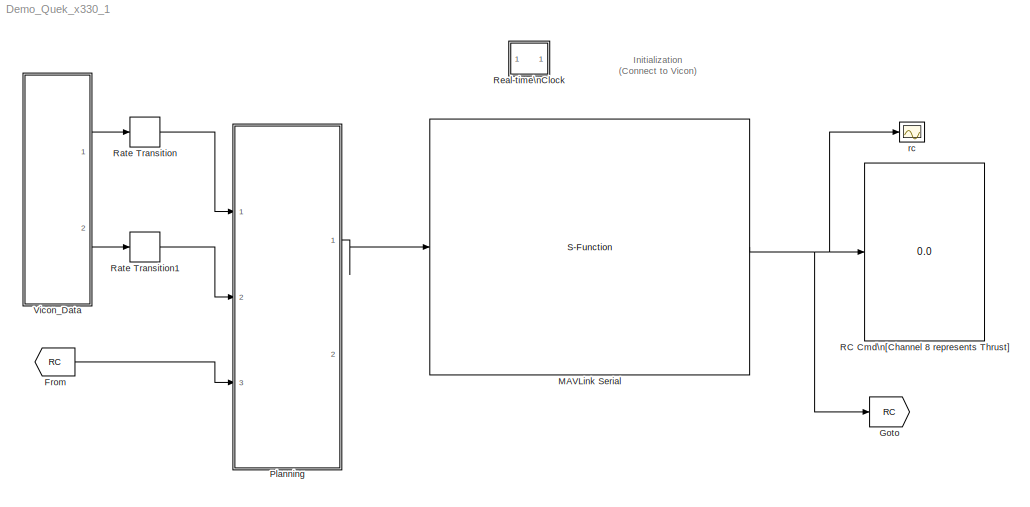
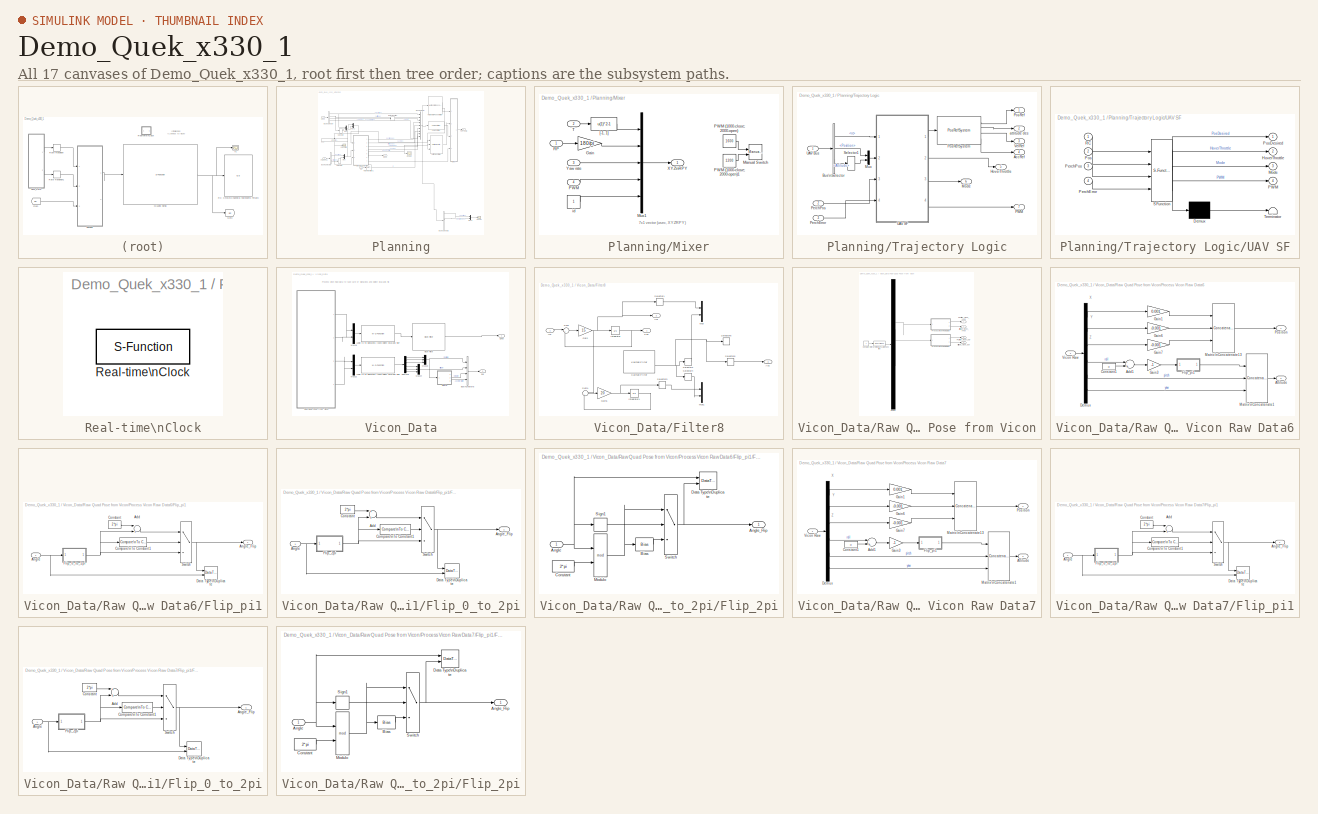
[diagram: thumbnail index - all 17 canvases of the model, root first then tree order]
MODEL Demo_Quek_x330_1
KIND model
CONFIG InitFcn = sample_time=0.005;%0.004;%0.0025;%0.02;\nsample_time_Vicon = 0.005;\nDeltaT = 0.02;\ng = 9.81;\nH0 = g%0.3165;\nKl = 1;\n\n\nomega_circle = 70*pi/180;\nomega_h = 0.1;%Ascending speed\nPI = pi;\nCircle_R = 2;\n\n\n
BLOCK [From] From
  GotoTag = RC
  SID = 4
  TagVisibility = global
BLOCK [Goto] Goto
  GotoTag = RC
  SID = 5
  TagVisibility = global
BLOCK [S-Function] MAVLink Serial
  EnableBusSupport = off
  FunctionName = MAVLink_Interface_MultUAV
  MaskCallbackString = |||||
  MaskDisplay = % Block image\nimage(imread('10-inch Quad Heat Map.png'));\n\n%Label block\nfprintf('MAVLink Serial\\n%s\\n%dbps', COM_Port,  Baud_Rate)\n\n\n%Label input ports\n\nin = 1;\nif (Quad_1 == 1)\n    port_label('input', in, 'Quad 1');\n    in = in + 1;\nend\nif (Quad_2 == 1)\n    port_label('input', in, 'Quad 2');\n    in = in + 1;\nend\n\nif (Quad_3 == 1)\n    port_label('input', in, 'Quad 3');\n    i...<+141ch>
  MaskEnableString = on,on,on,on,on,on
  MaskIconFrame = on
  MaskIconOpaque = off
  MaskIconRotate = none
  MaskIconUnits = autoscale
  MaskInitialization = MSG_ID_NUM_INPUT = [uint8(196) uint8(197) uint8(198)];\nMSG_ID_NAME_INPUT = [Quad_1 Quad_2 Quad_3];\n\nMSG_ID_NUM_OUTPUT = [uint8(34)];\nMSG_ID_NAME_OUTPUT = [RC_SCALED];\n\nidx_input = find(MSG_ID_NAME_INPUT);\nMSG_INPUT = MSG_ID_NUM_INPUT(idx_input);\n\nidx_output = find(MSG_ID_NAME_OUTPUT);\nMSG_OUTPUT = MSG_ID_NUM_OUTPUT(idx_output);
  MaskPortRotate = default
  MaskPromptString = COM Port|Baud Rate|RC CHANNELS SCALED|Quad No 1|Quad No 2|Quad No 3
  MaskStyleString = edit,edit,checkbox,checkbox,checkbox,checkbox
  MaskTabNameString = Setting,Setting,Output Message,Input Message,Input Message,Input Message
  MaskToolTipString = on,on,on,on,on,on
  MaskTunableValueString = on,on,on,on,on,on
  MaskValueString = 'COM7'|57600|on|on|off|off
  MaskVariables = COM_Port=@1;Baud_Rate=@2;RC_SCALED=@3;Quad_1=@4;Quad_2=@5;Quad_3=@6;
  MaskVisibilityString = on,on,on,on,on,on
  Parameters = COM_Port,Baud_Rate,MSG_INPUT,MSG_OUTPUT
  Ports = [1, 1]
  SID = 54
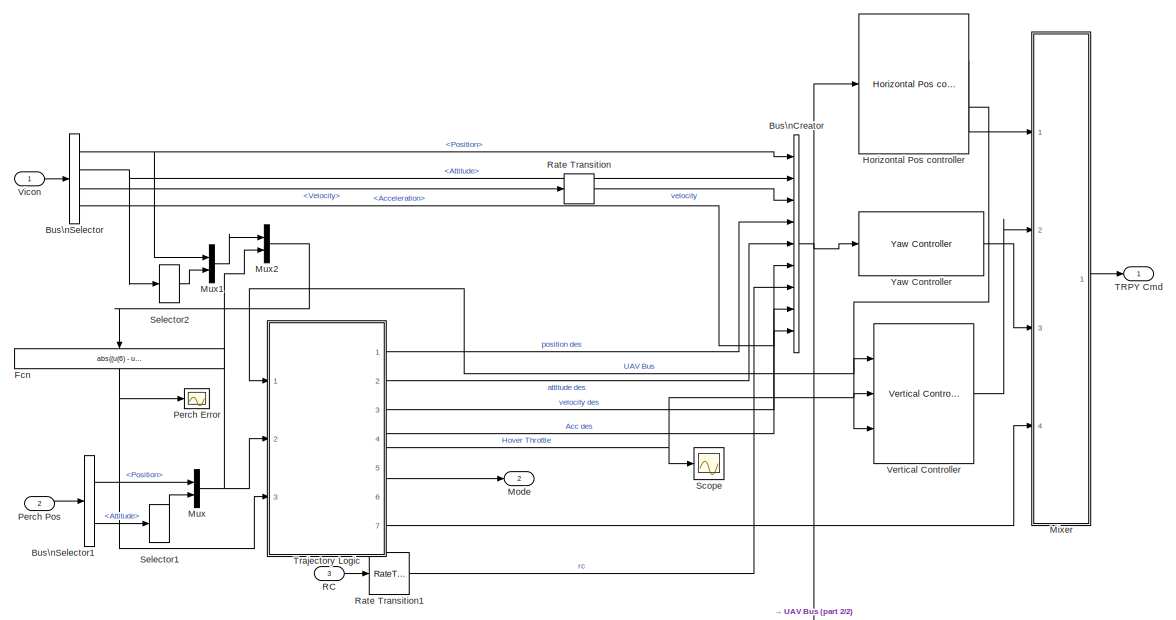
[diagram: Planning - part 1/2, full width, top band]
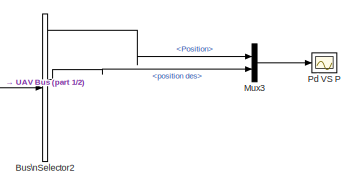
[diagram: Planning - part 2/2, bottom right region]
BLOCK [SubSystem] Planning
  FunctionWithSeparateData = off
  MaskHideContents = off
  MinAlgLoopOccurrences = off
  Opaque = off
  Ports = [3, 2]
  PropExecContextOutsideSubsystem = off
  RTWSystemCode = Auto
  RequestExecContextInheritance = off
  SID = 1084
BLOCK [BusCreator] Planning/Bus\nCreator
  DisplayOption = bar
  Inputs = 9
  Ports = [9, 1]
  SID = 2
BLOCK [BusSelector] Planning/Bus\nSelector
  OutputSignals = Position,Attitude,Velocity,Acceleration
  Ports = [1, 4]
  SID = 1083
BLOCK [BusSelector] Planning/Bus\nSelector1
  OutputSignals = Position,Attitude
  Ports = [1, 2]
  SID = 1508
BLOCK [BusSelector] Planning/Bus\nSelector2
  OutputSignals = Position,Attitude,velocity,position des,attitude des,velocity des,rc,Acc des
  Ports = [1, 8]
  SID = 1688
BLOCK [Fcn] Planning/Fcn
  Expr = abs((u(6) - u(2))*cos(u(8)) - (u(5) - u(1))*sin(u(8)))
  SID = 1515
BLOCK [Reference] Planning/Horizontal Pos controller  REF=X330_Control/Horizontal Pos controller
  FunctionWithSeparateData = off
  GeneratePreprocessorConditionals = off
  Max_RP = 60
  Omega = 2
  PID_i = 1
  Ports = [1, 2]
  RTWMemSecDataConstants = Inherit from model
  RTWMemSecDataInternal = Inherit from model
  RTWMemSecDataParameters = Inherit from model
  RTWMemSecFuncExecute = Inherit from model
  RTWMemSecFuncInitTerm = Inherit from model
  SID = 1684
  ShowPortLabels = FromPortIcon
  SourceBlock = X330_Control/Horizontal Pos controller
  SystemSampleTime = -1
  Zeta = 0.5
BLOCK [SubSystem] Planning/Mixer
  FunctionWithSeparateData = off
  MaskHideContents = off
  MinAlgLoopOccurrences = off
  Opaque = off
  Ports = [4, 1]
  PropExecContextOutsideSubsystem = off
  RTWSystemCode = Auto
  RequestExecContextInheritance = off
  SID = 60
BLOCK [Gain] Planning/Mixer/Gain
  Gain = 180/pi
  OutDataTypeStr = Inherit: Inherit via internal rule
  ParamDataTypeStr = Inherit: Inherit via internal rule
  SID = 1540
  SaturateOnIntegerOverflow = off
BLOCK [Reference] Planning/Mixer/Manual Switch  REF=simulink/Signal\nRouting/Manual Switch
  FunctionWithSeparateData = off
  GeneratePreprocessorConditionals = off
  Ports = [2, 1]
  RTWMemSecDataConstants = Inherit from model
  RTWMemSecDataInternal = Inherit from model
  RTWMemSecDataParameters = Inherit from model
  RTWMemSecFuncExecute = Inherit from model
  RTWMemSecFuncInitTerm = Inherit from model
  SID = 1434
  ShowPortLabels = FromPortIcon
  SourceBlock = simulink/Signal\nRouting/Manual Switch
  SourceType = Manual Switch
  SystemSampleTime = -1
  action = 0
  sw = 1
  varsize = off
BLOCK [Mux] Planning/Mixer/Mux1
  DisplayOption = bar
  Inputs = 5
  Ports = [5, 1]
  SID = 64
BLOCK [Inport] Planning/Mixer/PWM
  IconDisplay = Port number
  Port = 4
  SID = 1437
BLOCK [Constant] Planning/Mixer/PWM (1000-close; 2000-open)
  SID = 621
  SampleTime = 0.02
  Value = 1600
BLOCK [Constant] Planning/Mixer/PWM (1000-close; 2000-open)1
  SID = 1435
  SampleTime = 0.02
  Value = 1200
BLOCK [Inport] Planning/Mixer/RP
  IconDisplay = Port number
  SID = 61
BLOCK [Inport] Planning/Mixer/T
  IconDisplay = Port number
  Port = 2
  SID = 62
BLOCK [Outport] Planning/Mixer/XYZ\nRPY
  IconDisplay = Port number
  SID = 68
BLOCK [Inport] Planning/Mixer/Yaw rate
  IconDisplay = Port number
  Port = 3
  SID = 63
BLOCK [Fcn] Planning/Mixer/[-1, 1]
  Expr = u(1)*2-1
  SID = 1612
BLOCK [Constant] Planning/Mixer/id
  SID = 67
  SampleTime = 0.02
BLOCK [Outport] Planning/Mode
  IconDisplay = Port number
  Port = 2
  SID = 1089
BLOCK [Mux] Planning/Mux
  DisplayOption = bar
  Inputs = 2
  Ports = [2, 1]
  SID = 1509
BLOCK [Mux] Planning/Mux1
  DisplayOption = bar
  Inputs = 2
  Ports = [2, 1]
  SID = 1512
BLOCK [Mux] Planning/Mux2
  DisplayOption = bar
  Inputs = 2
  Ports = [2, 1]
  SID = 1514
BLOCK [Mux] Planning/Mux3
  DisplayOption = bar
  Inputs = 2
  Ports = [2, 1]
  SID = 1689
BLOCK [Scope] Planning/Pd VS P
  DataFormat = StructureWithTime
  Floating = off
  LimitDataPoints = off
  NumInputPorts = 1
  Ports = [1]
  SID = 1690
  SampleTime = 0
  TimeRange = 10
  YMax = 1.1
  YMin = -0.4
BLOCK [Scope] Planning/Perch Error
  DataFormat = StructureWithTime
  Floating = off
  LimitDataPoints = off
  NumInputPorts = 1
  Ports = [1]
  SID = 1516
  SampleTime = 0
  SaveName = ScopeData2
  TimeRange = 10
  YMax = 0.3
  YMin = 1.38778e-017
  ZoomMode = yonly
BLOCK [Inport] Planning/Perch Pos
  IconDisplay = Port number
  Port = 2
  SID = 1088
BLOCK [Inport] Planning/RC
  IconDisplay = Port number
  Port = 3
  SID = 1090
BLOCK [RateTransition] Planning/Rate Transition
  OutPortSampleTime = 0.02
  SID = 56
BLOCK [RateTransition] Planning/Rate Transition1
  OutPortSampleTime = 0.02
  SID = 57
BLOCK [Scope] Planning/Scope
  DataFormat = StructureWithTime
  Floating = off
  NumInputPorts = 1
  Ports = [1]
  SID = 1527
  SampleTime = 0
  SaveName = ScopeData4
BLOCK [Selector] Planning/Selector1
  IndexOptions = Index vector (dialog)
  Indices = [3]
  InputPortWidth = 3
  OutputSizes = 1
  Ports = [1, 1]
  SID = 1510
BLOCK [Selector] Planning/Selector2
  IndexOptions = Index vector (dialog)
  Indices = [3]
  InputPortWidth = 3
  OutputSizes = 1
  Ports = [1, 1]
  SID = 1513
BLOCK [Outport] Planning/TRPY Cmd
  IconDisplay = Port number
  SID = 1086
BLOCK [SubSystem] Planning/Trajectory Logic
  FunctionWithSeparateData = off
  MaskHideContents = off
  MinAlgLoopOccurrences = off
  Opaque = off
  Ports = [3, 7]
  PropExecContextOutsideSubsystem = off
  RTWSystemCode = Auto
  RequestExecContextInheritance = off
  SID = 573
BLOCK [Outport] Planning/Trajectory Logic/AccRef
  IconDisplay = Port number
  Port = 4
  SID = 577
BLOCK [BusSelector] Planning/Trajectory Logic/Bus\nSelector
  OutputSignals = rc,Position,Attitude
  Ports = [1, 3]
  SID = 583
BLOCK [Outport] Planning/Trajectory Logic/HoverThrottle
  IconDisplay = Port number
  Port = 5
  SID = 579
BLOCK [Outport] Planning/Trajectory Logic/Mode
  IconDisplay = Port number
  Port = 6
  SID = 581
BLOCK [Mux] Planning/Trajectory Logic/Mux
  DisplayOption = bar
  Inputs = 2
  Ports = [2, 1]
  SID = 593
BLOCK [Outport] Planning/Trajectory Logic/PWM
  IconDisplay = Port number
  Port = 7
  SID = 1436
BLOCK [Inport] Planning/Trajectory Logic/PerchError
  IconDisplay = Port number
  Port = 3
  SID = 1517
BLOCK [Inport] Planning/Trajectory Logic/PerchPos
  IconDisplay = Port number
  Port = 2
  SID = 580
BLOCK [Outport] Planning/Trajectory Logic/PosRef
  IconDisplay = Port number
  SID = 574
BLOCK [Reference] Planning/Trajectory Logic/PosRefSystem  REF=X330_Control/PosRefSystem
  Acc_Max = 5
  Acc_h_Max = 4
  FunctionWithSeparateData = off
  GeneratePreprocessorConditionals = off
  Omega_h_r = 2.8
  Omega_r = 1.8
  Ports = [1, 4]
  RTWMemSecDataConstants = Inherit from model
  RTWMemSecDataInternal = Inherit from model
  RTWMemSecDataParameters = Inherit from model
  RTWMemSecFuncExecute = Inherit from model
  RTWMemSecFuncInitTerm = Inherit from model
  SID = 1687
  ShowPortLabels = FromPortIcon
  SourceBlock = X330_Control/PosRefSystem
  SourceType = Unknown
  SystemSampleTime = -1
  Zeta_h_r = 1
  Zeta_r = 0.5
BLOCK [Selector] Planning/Trajectory Logic/Selector1
  IndexOptions = Index vector (dialog)
  Indices = [3]
  InputPortWidth = 3
  OutputSizes = 1
  Ports = [1, 1]
  SID = 592
BLOCK [Inport] Planning/Trajectory Logic/UAV Bus
  IconDisplay = Port number
  SID = 582
BLOCK [SubSystem] Planning/Trajectory Logic/UAV SF
  ErrorFcn = Stateflow.Translate.translate
  FunctionWithSeparateData = off
  MaskDescription = Stateflow diagram
  MaskDisplay = plot(sf('Private','sfblk','xIcon'),sf('Private','sfblk','yIcon'));text(0.5,0,sf('Private', 'sfblk', 'tIcon'),'HorizontalAl','Center','VerticalAl','Bottom');
  MaskHideContents = off
  MaskIconFrame = off
  MaskIconOpaque = off
  MaskIconRotate = none
  MaskIconUnits = autoscale
  MaskPortRotate = default
  MaskSelfModifiable = on
  MaskType = Stateflow
  MinAlgLoopOccurrences = off
  Opaque = off
  PermitHierarchicalResolution = ExplicitOnly
  Ports = [4, 4]
  PropExecContextOutsideSubsystem = off
  RTWSystemCode = Auto
  RequestExecContextInheritance = off
  SID = 572
  TreatAsAtomicUnit = on
BLOCK [Demux] Planning/Trajectory Logic/UAV SF/ Demux 
  Outputs = 1
  Ports = [1, 1]
  SID = 572::8
BLOCK [S-Function] Planning/Trajectory Logic/UAV SF/ SFunction 
  EnableBusSupport = on
  FunctionName = sf_sfun
  Parameters = Circle_R,DeltaT,H0,Kl,PI,omega_circle
  PortCounts = [4 5]
  Ports = [4, 5]
  SID = 572::7
  Tag = Stateflow S-Function Demo_Quek_x330_1 3
BLOCK [Terminator] Planning/Trajectory Logic/UAV SF/ Terminator 
  SID = 572::37
BLOCK [Outport] Planning/Trajectory Logic/UAV SF/HoverThrottle
  IconDisplay = Port number
  Port = 2
  SID = 572::17
BLOCK [Outport] Planning/Trajectory Logic/UAV SF/Mode
  IconDisplay = Port number
  Port = 3
  SID = 572::18
BLOCK [Outport] Planning/Trajectory Logic/UAV SF/PWM
  IconDisplay = Port number
  Port = 4
  SID = 572::35
BLOCK [Inport] Planning/Trajectory Logic/UAV SF/PerchError
  IconDisplay = Port number
  Port = 4
  SID = 572::36
BLOCK [Inport] Planning/Trajectory Logic/UAV SF/PerchPos
  IconDisplay = Port number
  Port = 3
  SID = 572::23
BLOCK [Inport] Planning/Trajectory Logic/UAV SF/Pos
  IconDisplay = Port number
  Port = 2
  SID = 572::20
BLOCK [Outport] Planning/Trajectory Logic/UAV SF/PosDesired
  IconDisplay = Port number
  SID = 572::16
BLOCK [Inport] Planning/Trajectory Logic/UAV SF/RC
  IconDisplay = Port number
  SID = 572::19
BLOCK [Outport] Planning/Trajectory Logic/VelRef
  IconDisplay = Port number
  Port = 3
  SID = 575
BLOCK [Outport] Planning/Trajectory Logic/attitude des
  IconDisplay = Port number
  Port = 2
  SID = 591
BLOCK [Reference] Planning/Vertical Controller  REF=X330_Control/Vertical Controller
  FunctionWithSeparateData = off
  GeneratePreprocessorConditionals = off
  Omega_h = 3
  PID_I_h = 1
  Ports = [3, 1]
  RTWMemSecDataConstants = Inherit from model
  RTWMemSecDataInternal = Inherit from model
  RTWMemSecDataParameters = Inherit from model
  RTWMemSecFuncExecute = Inherit from model
  RTWMemSecFuncInitTerm = Inherit from model
  SID = 1686
  ShowPortLabels = FromPortIcon
  SourceBlock = X330_Control/Vertical Controller
  SystemSampleTime = -1
  Zeta_h = 1
  mass = 0.72
BLOCK [Inport] Planning/Vicon
  IconDisplay = Port number
  SID = 1085
BLOCK [Reference] Planning/Yaw Controller  REF=X330_Control/Yaw Controller
  FunctionWithSeparateData = off
  GeneratePreprocessorConditionals = off
  Ports = [1, 1]
  RTWMemSecDataConstants = Inherit from model
  RTWMemSecDataInternal = Inherit from model
  RTWMemSecDataParameters = Inherit from model
  RTWMemSecFuncExecute = Inherit from model
  RTWMemSecFuncInitTerm = Inherit from model
  SID = 1685
  ShowPortLabels = FromPortIcon
  SourceBlock = X330_Control/Yaw Controller
  SourceType = SubSystem
  SystemSampleTime = -1
BLOCK [Display] RC Cmd\n[Channel 8 represents Thrust]
  Decimation = 1
  Lockdown = off
  Ports = [1]
  SID = 55
BLOCK [RateTransition] Rate Transition
  OutPortSampleTime = 0.02
  SID = 1518
BLOCK [RateTransition] Rate Transition1
  OutPortSampleTime = 0.02
  SID = 1519
BLOCK [SubSystem] Real-time\nClock
  FunctionWithSeparateData = off
  MaskCallbackString = |
  MaskDescription = Real-time Synchronization Block
  MaskDisplay = plot(0,0,100,100,[40,60,60,54,54,64,69,76,82,77,81,83,83,81,78,74,70,64,57,49,41,35,32,30,30,31,34,40,47,47,40,40],[90,90,85,85,80,79,76,87,80,70,64,57,49,41,33,28,24,22,21,23,25,31,37,46,56,65,73,78,80,85,85,90],[69,53,53],[64,50,73])
  MaskEnableString = on,on
  MaskHelp = This block synchronizes simulation time with the PC real-time clock or UNIX system clock. The first dialog entry is the period at which the clock is checked to insure real-time synchronization. The second dialog entry is the number of seconds that the simulation time must be within real-time before a warning is printed.
  MaskHideContents = off
  MaskIconFrame = on
  MaskIconOpaque = on
  MaskIconRotate = none
  MaskIconUnits = autoscale
  MaskPortRotate = default
  MaskPromptString = Synchronize with real-time every n seconds:|Real-time warning tolerance (seconds):
  MaskStyleString = edit,edit
  MaskToolTipString = on,on
  MaskTunableValueString = on,on
  MaskType = Real-time Clock
  MaskValueString = 0.02|1
  MaskVariables = sample_time=@1;tolerance=@2;
  MaskVisibilityString = on,on
  MinAlgLoopOccurrences = off
  Opaque = off
  Ports = []
  PropExecContextOutsideSubsystem = off
  RTWSystemCode = Auto
  RequestExecContextInheritance = off
  SID = 607
  ShowPortLabels = none
BLOCK [S-Function] Real-time\nClock/Real-time\nClock
  EnableBusSupport = off
  FunctionName = rtclock
  Parameters = sample_time, tolerance
  Ports = []
  SID = 608
BLOCK [SubSystem] Vicon_Data
  FunctionWithSeparateData = off
  MaskHideContents = off
  MinAlgLoopOccurrences = off
  Opaque = off
  Ports = [0, 2]
  PropExecContextOutsideSubsystem = off
  RTWSystemCode = Auto
  RequestExecContextInheritance = off
  SID = 622
BLOCK [BusCreator] Vicon_Data/Bus\nCreator8
  DisplayOption = bar
  Ports = [4, 1]
  SID = 1479
BLOCK [Demux] Vicon_Data/Demux8
  DisplayOption = bar
  Outputs = 6
  Ports = [1, 6]
  SID = 1480
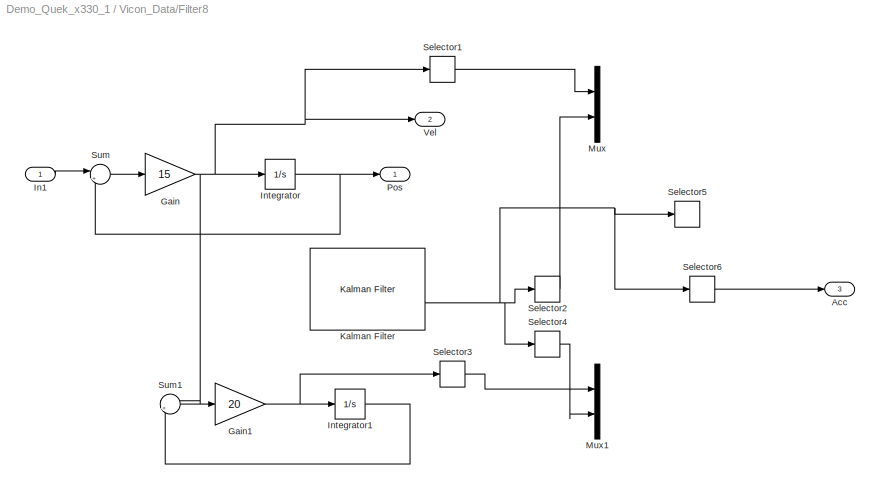
BLOCK [SubSystem] Vicon_Data/Filter8
  FunctionWithSeparateData = off
  MaskHideContents = off
  MinAlgLoopOccurrences = off
  Opaque = off
  Ports = [1, 3]
  PropExecContextOutsideSubsystem = off
  RTWSystemCode = Auto
  RequestExecContextInheritance = off
  SID = 1481
BLOCK [Outport] Vicon_Data/Filter8/Acc
  IconDisplay = Port number
  Port = 3
  SID = 1500
BLOCK [Gain] Vicon_Data/Filter8/Gain
  Gain = 15
  OutDataTypeStr = Inherit: Inherit via internal rule
  ParamDataTypeStr = Inherit: Inherit via internal rule
  SID = 1483
  SaturateOnIntegerOverflow = off
BLOCK [Gain] Vicon_Data/Filter8/Gain1
  Gain = 20
  OutDataTypeStr = Inherit: Inherit via internal rule
  ParamDataTypeStr = Inherit: Inherit via internal rule
  SID = 1484
  SaturateOnIntegerOverflow = off
BLOCK [Inport] Vicon_Data/Filter8/In1
  IconDisplay = Port number
  SID = 1482
BLOCK [Integrator] Vicon_Data/Filter8/Integrator
  Ports = [1, 1]
  SID = 1485
BLOCK [Integrator] Vicon_Data/Filter8/Integrator1
  Ports = [1, 1]
  SID = 1486
BLOCK [Reference] Vicon_Data/Filter8/Kalman Filter  REF=dspadpt3/Kalman Filter
  A = [1 sample_time sample_time*sample_time/2 zeros(1,6);0 1 sample_time zeros(1,6);0 0 1 zeros(1,6);0 0 0 1 sample_time sample_time*sample_time/2 0 0 0;zeros(1,4) 1 sample_time zeros(1,3);zeros(1,5) 1 zeros(1,3);zeros(1,6) 1 sample_time sample_time*sample_time/2;zeros(1,7) 1 sample_time;zeros(1,8) 1]
  FunctionWithSeparateData = off
  GeneratePreprocessorConditionals = off
  H = [1 zeros(1,8); zeros(1,3) 1 zeros(1,5);zeros(1,6) 1 0 0]
  P = zeros(9)
  Ports = [1, 2]
  Q = diag([0 0.001 0.001 0 0.001 0.001 0 0.001 0.001])
  R = 0.001*eye(3)
  RTWMemSecDataConstants = Inherit from model
  RTWMemSecDataInternal = Inherit from model
  RTWMemSecDataParameters = Inherit from model
  RTWMemSecFuncExecute = Inherit from model
  RTWMemSecFuncInitTerm = Inherit from model
  SID = 1487
  ShowPortLabels = FromPortIcon
  SourceBlock = dspadpt3/Kalman Filter
  SourceType = Kalman Filter
  SystemSampleTime = -1
  X = zeros([9, 1])
  isOutputEstError = off
  isOutputEstMeasure = on
  isOutputEstState = on
  isOutputPrdError = off
  isOutputPrdMeasure = off
  isOutputPrdState = off
  isReset = on
  num_targets = 1
  sourceEnable = Always
  sourceMeasure = Specify via Dialog
BLOCK [Mux] Vicon_Data/Filter8/Mux
  DisplayOption = bar
  Inputs = 2
  Ports = [2, 1]
  SID = 1488
BLOCK [Mux] Vicon_Data/Filter8/Mux1
  DisplayOption = bar
  Inputs = 2
  Ports = [2, 1]
  SID = 1489
BLOCK [Outport] Vicon_Data/Filter8/Pos
  IconDisplay = Port number
  SID = 1498
BLOCK [Selector] Vicon_Data/Filter8/Selector1
  IndexOptions = Index vector (dialog)
  Indices = [2]
  InputPortWidth = 3
  OutputSizes = 1
  Ports = [1, 1]
  SID = 1490
BLOCK [Selector] Vicon_Data/Filter8/Selector2
  IndexOptions = Index vector (dialog)
  Indices = [5]
  InputPortWidth = 9
  OutputSizes = 1
  Ports = [1, 1]
  SID = 1491
BLOCK [Selector] Vicon_Data/Filter8/Selector3
  IndexOptions = Index vector (dialog)
  Indices = [2]
  InputPortWidth = 3
  OutputSizes = 1
  Ports = [1, 1]
  SID = 1492
BLOCK [Selector] Vicon_Data/Filter8/Selector4
  IndexOptions = Index vector (dialog)
  Indices = [6]
  InputPortWidth = 9
  OutputSizes = 1
  Ports = [1, 1]
  SID = 1493
BLOCK [Selector] Vicon_Data/Filter8/Selector5
  IndexOptions = Index vector (dialog)
  Indices = [2 5 8]
  InputPortWidth = 9
  OutputSizes = 1
  Ports = [1, 1]
  SID = 1494
BLOCK [Selector] Vicon_Data/Filter8/Selector6
  IndexOptions = Index vector (dialog)
  Indices = [3 6 9]
  InputPortWidth = 9
  OutputSizes = 1
  Ports = [1, 1]
  SID = 1495
BLOCK [Sum] Vicon_Data/Filter8/Sum
  IconShape = round
  InputSameDT = off
  Inputs = |+-
  OutDataTypeStr = Inherit: Inherit via internal rule
  Ports = [2, 1]
  SID = 1496
  SaturateOnIntegerOverflow = off
BLOCK [Sum] Vicon_Data/Filter8/Sum1
  IconShape = round
  InputSameDT = off
  Inputs = |+-
  OutDataTypeStr = Inherit: Inherit via internal rule
  Ports = [2, 1]
  SID = 1497
  SaturateOnIntegerOverflow = off
BLOCK [Outport] Vicon_Data/Filter8/Vel
  IconDisplay = Port number
  Port = 2
  SID = 1499
BLOCK [M-S-Function] Vicon_Data/Logic to fix signal loss \nand object local axis flip7
  FunctionName = Vicon_Filter
  Ports = [1, 1]
  SID = 1426
BLOCK [M-S-Function] Vicon_Data/Logic to fix signal loss \nand object local axis flip8
  FunctionName = Vicon_Filter
  Ports = [1, 1]
  SID = 1501
BLOCK [Mux] Vicon_Data/Mux19
  DisplayOption = bar
  Inputs = 2
  Ports = [2, 1]
  SID = 1427
BLOCK [Mux] Vicon_Data/Mux22
  DisplayOption = bar
  Inputs = 2
  Ports = [2, 1]
  SID = 1502
BLOCK [Mux] Vicon_Data/Mux23
  DisplayOption = bar
  Inputs = 3
  Ports = [3, 1]
  SID = 1503
BLOCK [Mux] Vicon_Data/Mux24
  DisplayOption = bar
  Inputs = 3
  Ports = [3, 1]
  SID = 1504
BLOCK [Outport] Vicon_Data/Q400
  IconDisplay = Port number
  SID = 1430
BLOCK [SubSystem] Vicon_Data/Raw Quad Pose from Vicon
  FunctionWithSeparateData = off
  MaskHideContents = off
  MinAlgLoopOccurrences = off
  Opaque = off
  Ports = [0, 4]
  PropExecContextOutsideSubsystem = off
  RTWSystemCode = Auto
  RequestExecContextInheritance = off
  SID = 675
BLOCK [Outport] Vicon_Data/Raw Quad Pose from Vicon/Attitude_Vicon_bar
  IconDisplay = Port number
  Port = 4
  SID = 1478
BLOCK [Outport] Vicon_Data/Raw Quad Pose from Vicon/Attitude_Vicon_x400
  IconDisplay = Port number
  Port = 2
  SID = 1403
BLOCK [Constant] Vicon_Data/Raw Quad Pose from Vicon/Constant
  SID = 1431
BLOCK [Demux] Vicon_Data/Raw Quad Pose from Vicon/Demux
  DisplayOption = bar
  Outputs = 2
  Ports = [1, 2]
  SID = 677
BLOCK [MATLABFcn] Vicon_Data/Raw Quad Pose from Vicon/Interpreted MATLAB\nFunction
  MATLABFcn = GetViconPose_x330_1
  Ports = [1, 1]
  SID = 678
BLOCK [Outport] Vicon_Data/Raw Quad Pose from Vicon/Position_Vicon_bar
  IconDisplay = Port number
  Port = 3
  SID = 1477
BLOCK [Outport] Vicon_Data/Raw Quad Pose from Vicon/Position_Vicon_x400
  IconDisplay = Port number
  SID = 1402
BLOCK [SubSystem] Vicon_Data/Raw Quad Pose from Vicon/Process Vicon Raw Data6
  FunctionWithSeparateData = off
  MaskHideContents = off
  MinAlgLoopOccurrences = off
  Opaque = off
  Ports = [1, 2]
  PropExecContextOutsideSubsystem = off
  RTWSystemCode = Auto
  RequestExecContextInheritance = off
  SID = 1364
BLOCK [Sum] Vicon_Data/Raw Quad Pose from Vicon/Process Vicon Raw Data6/Add1
  InputSameDT = off
  Inputs = -+
  OutDataTypeStr = Inherit: Inherit via internal rule
  Ports = [2, 1]
  SID = 1366
  SaturateOnIntegerOverflow = off
BLOCK [Outport] Vicon_Data/Raw Quad Pose from Vicon/Process Vicon Raw Data6/Attitude
  IconDisplay = Port number
  Port = 2
  SID = 1401
BLOCK [Constant] Vicon_Data/Raw Quad Pose from Vicon/Process Vicon Raw Data6/Constant1
  OutDataTypeStr = double
  SID = 1367
  Value = pi
BLOCK [Demux] Vicon_Data/Raw Quad Pose from Vicon/Process Vicon Raw Data6/Demux
  DisplayOption = bar
  Outputs = 6
  Ports = [1, 6]
  SID = 1368
BLOCK [SubSystem] Vicon_Data/Raw Quad Pose from Vicon/Process Vicon Raw Data6/Flip_pi1
  FunctionWithSeparateData = off
  MaskDescription = Flips the inputs into the range -pi to pi
  MaskDisplay = disp('Flip_pi')
  MaskHelp = Flips the inputs into the range -pi to pi
  MaskHideContents = off
  MaskIconFrame = on
  MaskIconOpaque = on
  MaskIconRotate = none
  MaskIconUnits = autoscale
  MaskPortRotate = default
  MaskType = Flip -pi to pi
  MinAlgLoopOccurrences = off
  Opaque = off
  Ports = [1, 1]
  PropExecContextOutsideSubsystem = off
  RTWSystemCode = Auto
  RequestExecContextInheritance = off
  SID = 1369
BLOCK [Sum] Vicon_Data/Raw Quad Pose from Vicon/Process Vicon Raw Data6/Flip_pi1/Add
  InputSameDT = off
  Inputs = -+
  OutDataTypeStr = Inherit: Inherit via internal rule
  Ports = [2, 1]
  SID = 1371
  SaturateOnIntegerOverflow = off
BLOCK [Inport] Vicon_Data/Raw Quad Pose from Vicon/Process Vicon Raw Data6/Flip_pi1/Angle
  IconDisplay = Port number
  SID = 1370
BLOCK [Outport] Vicon_Data/Raw Quad Pose from Vicon/Process Vicon Raw Data6/Flip_pi1/Angle_Flip
  IconDisplay = Port number
  SID = 1393
BLOCK [Reference] Vicon_Data/Raw Quad Pose from Vicon/Process Vicon Raw Data6/Flip_pi1/Compare\nTo Constant1  REF=simulink/Logic and Bit\nOperations/Compare\nTo Constant
  FunctionWithSeparateData = off
  GeneratePreprocessorConditionals = off
  LogicOutDataTypeMode = uint8
  Ports = [1, 1]
  RTWMemSecDataConstants = Inherit from model
  RTWMemSecDataInternal = Inherit from model
  RTWMemSecDataParameters = Inherit from model
  RTWMemSecFuncExecute = Inherit from model
  RTWMemSecFuncInitTerm = Inherit from model
  SID = 1372
  ShowPortLabels = FromPortIcon
  SourceBlock = simulink/Logic and Bit\nOperations/Compare\nTo Constant
  SourceType = Compare To Constant
  SystemSampleTime = -1
  ZeroCross = off
  const = pi
  relop = >
BLOCK [Constant] Vicon_Data/Raw Quad Pose from Vicon/Process Vicon Raw Data6/Flip_pi1/Constant
  SID = 1373
  Value = 2*pi
BLOCK [DataTypeDuplicate] Vicon_Data/Raw Quad Pose from Vicon/Process Vicon Raw Data6/Flip_pi1/Data Type\nDuplicate
  Ports = [2]
  SID = 1374
BLOCK [SubSystem] Vicon_Data/Raw Quad Pose from Vicon/Process Vicon Raw Data6/Flip_pi1/Flip_0_to_2pi
  FunctionWithSeparateData = off
  MaskDescription = Flips the inputs into the range zero to +2pi
  MaskDisplay = disp('Flip_0_2pi')
  MaskHelp = Flips the inputs into the range zero to +2pi
  MaskHideContents = off
  MaskIconFrame = on
  MaskIconOpaque = on
  MaskIconRotate = none
  MaskIconUnits = autoscale
  MaskPortRotate = default
  MaskType = Flip zero to 2pi
  MinAlgLoopOccurrences = off
  Opaque = off
  Ports = [1, 1]
  PropExecContextOutsideSubsystem = off
  RTWSystemCode = Auto
  RequestExecContextInheritance = off
  SID = 1375
BLOCK [Sum] Vicon_Data/Raw Quad Pose from Vicon/Process Vicon Raw Data6/Flip_pi1/Flip_0_to_2pi/Add
  InputSameDT = off
  OutDataTypeStr = Inherit: Inherit via internal rule
  Ports = [2, 1]
  SID = 1377
  SaturateOnIntegerOverflow = off
BLOCK [Inport] Vicon_Data/Raw Quad Pose from Vicon/Process Vicon Raw Data6/Flip_pi1/Flip_0_to_2pi/Angle
  IconDisplay = Port number
  SID = 1376
BLOCK [Outport] Vicon_Data/Raw Quad Pose from Vicon/Process Vicon Raw Data6/Flip_pi1/Flip_0_to_2pi/Angle_Flip
  IconDisplay = Port number
  SID = 1391
BLOCK [Reference] Vicon_Data/Raw Quad Pose from Vicon/Process Vicon Raw Data6/Flip_pi1/Flip_0_to_2pi/Compare\nTo Constant1  REF=simulink/Logic and Bit\nOperations/Compare\nTo Constant
  FunctionWithSeparateData = off
  GeneratePreprocessorConditionals = off
  LogicOutDataTypeMode = uint8
  Ports = [1, 1]
  RTWMemSecDataConstants = Inherit from model
  RTWMemSecDataInternal = Inherit from model
  RTWMemSecDataParameters = Inherit from model
  RTWMemSecFuncExecute = Inherit from model
  RTWMemSecFuncInitTerm = Inherit from model
  SID = 1378
  ShowPortLabels = FromPortIcon
  SourceBlock = simulink/Logic and Bit\nOperations/Compare\nTo Constant
  SourceType = Compare To Constant
  SystemSampleTime = -1
  ZeroCross = off
  const = 0
  relop = <
BLOCK [Constant] Vicon_Data/Raw Quad Pose from Vicon/Process Vicon Raw Data6/Flip_pi1/Flip_0_to_2pi/Constant
  SID = 1379
  Value = 2*pi
BLOCK [DataTypeDuplicate] Vicon_Data/Raw Quad Pose from Vicon/Process Vicon Raw Data6/Flip_pi1/Flip_0_to_2pi/Data Type\nDuplicate
  Ports = [2]
  SID = 1380
BLOCK [SubSystem] Vicon_Data/Raw Quad Pose from Vicon/Process Vicon Raw Data6/Flip_pi1/Flip_0_to_2pi/Flip_2pi
  FunctionWithSeparateData = off
  MaskDescription = Flips the inputs into the range -2pi to +2pi
  MaskDisplay = disp('Flip_2pi')
  MaskHelp = Flips the inputs into the range -2pi to +2pi
  MaskHideContents = off
  MaskIconFrame = on
  MaskIconOpaque = on
  MaskIconRotate = none
  MaskIconUnits = autoscale
  MaskPortRotate = default
  MaskType = Flip -2pi to 2pi
  MinAlgLoopOccurrences = off
  Opaque = off
  Ports = [1, 1]
  PropExecContextOutsideSubsystem = off
  RTWSystemCode = Auto
  RequestExecContextInheritance = off
  SID = 1381
BLOCK [Inport] Vicon_Data/Raw Quad Pose from Vicon/Process Vicon Raw Data6/Flip_pi1/Flip_0_to_2pi/Flip_2pi/Angle
  IconDisplay = Port number
  SID = 1382
BLOCK [Outport] Vicon_Data/Raw Quad Pose from Vicon/Process Vicon Raw Data6/Flip_pi1/Flip_0_to_2pi/Flip_2pi/Angle_Flip
  IconDisplay = Port number
  SID = 1389
BLOCK [Bias] Vicon_Data/Raw Quad Pose from Vicon/Process Vicon Raw Data6/Flip_pi1/Flip_0_to_2pi/Flip_2pi/Bias
  Bias = -2*pi
  SID = 1383
  SaturateOnIntegerOverflow = off
BLOCK [Constant] Vicon_Data/Raw Quad Pose from Vicon/Process Vicon Raw Data6/Flip_pi1/Flip_0_to_2pi/Flip_2pi/Constant
  SID = 1384
  Value = 2*pi
BLOCK [DataTypeDuplicate] Vicon_Data/Raw Quad Pose from Vicon/Process Vicon Raw Data6/Flip_pi1/Flip_0_to_2pi/Flip_2pi/Data Type\nDuplicate
  Ports = [2]
  SID = 1385
BLOCK [Math] Vicon_Data/Raw Quad Pose from Vicon/Process Vicon Raw Data6/Flip_pi1/Flip_0_to_2pi/Flip_2pi/Modulo
  Operator = mod
  Ports = [2, 1]
  SID = 1386
BLOCK [Signum] Vicon_Data/Raw Quad Pose from Vicon/Process Vicon Raw Data6/Flip_pi1/Flip_0_to_2pi/Flip_2pi/Sign1
  SID = 1387
BLOCK [Switch] Vicon_Data/Raw Quad Pose from Vicon/Process Vicon Raw Data6/Flip_pi1/Flip_0_to_2pi/Flip_2pi/Switch
  InputSameDT = off
  SID = 1388
  SaturateOnIntegerOverflow = off
BLOCK [Switch] Vicon_Data/Raw Quad Pose from Vicon/Process Vicon Raw Data6/Flip_pi1/Flip_0_to_2pi/Switch
  Criteria = u2 ~= 0
  InputSameDT = off
  SID = 1390
  SaturateOnIntegerOverflow = off
BLOCK [Switch] Vicon_Data/Raw Quad Pose from Vicon/Process Vicon Raw Data6/Flip_pi1/Switch
  Criteria = u2 ~= 0
  InputSameDT = off
  SID = 1392
  SaturateOnIntegerOverflow = off
BLOCK [Gain] Vicon_Data/Raw Quad Pose from Vicon/Process Vicon Raw Data6/Gain1
  Gain = 0.001
  OutDataTypeStr = Inherit: Inherit via internal rule
  ParamDataTypeStr = Inherit: Inherit via internal rule
  SID = 1394
  SaturateOnIntegerOverflow = off
BLOCK [Gain] Vicon_Data/Raw Quad Pose from Vicon/Process Vicon Raw Data6/Gain3
  Gain = -1
  OutDataTypeStr = Inherit: Inherit via internal rule
  ParamDataTypeStr = Inherit: Inherit via internal rule
  SID = 1395
  SaturateOnIntegerOverflow = off
BLOCK [Gain] Vicon_Data/Raw Quad Pose from Vicon/Process Vicon Raw Data6/Gain6
  Gain = -0.001
  OutDataTypeStr = Inherit: Inherit via internal rule
  ParamDataTypeStr = Inherit: Inherit via internal rule
  SID = 1396
  SaturateOnIntegerOverflow = off
BLOCK [Gain] Vicon_Data/Raw Quad Pose from Vicon/Process Vicon Raw Data6/Gain7
  Gain = -0.001
  OutDataTypeStr = Inherit: Inherit via internal rule
  ParamDataTypeStr = Inherit: Inherit via internal rule
  SID = 1397
  SaturateOnIntegerOverflow = off
BLOCK [Concatenate] Vicon_Data/Raw Quad Pose from Vicon/Process Vicon Raw Data6/Matrix\nConcatenate1
  Mode = Multidimensional array
  NumInputs = 3
  Ports = [3, 1]
  SID = 1398
BLOCK [Concatenate] Vicon_Data/Raw Quad Pose from Vicon/Process Vicon Raw Data6/Matrix\nConcatenate13
  Mode = Multidimensional array
  NumInputs = 3
  Ports = [3, 1]
  SID = 1399
BLOCK [Outport] Vicon_Data/Raw Quad Pose from Vicon/Process Vicon Raw Data6/Position
  IconDisplay = Port number
  SID = 1400
BLOCK [Inport] Vicon_Data/Raw Quad Pose from Vicon/Process Vicon Raw Data6/Vicon Raw
  IconDisplay = Port number
  SID = 1365
BLOCK [SubSystem] Vicon_Data/Raw Quad Pose from Vicon/Process Vicon Raw Data7
  FunctionWithSeparateData = off
  MaskHideContents = off
  MinAlgLoopOccurrences = off
  Opaque = off
  Ports = [1, 2]
  PropExecContextOutsideSubsystem = off
  RTWSystemCode = Auto
  RequestExecContextInheritance = off
  SID = 1439
BLOCK [Sum] Vicon_Data/Raw Quad Pose from Vicon/Process Vicon Raw Data7/Add1
  InputSameDT = off
  Inputs = -+
  OutDataTypeStr = Inherit: Inherit via internal rule
  Ports = [2, 1]
  SID = 1441
  SaturateOnIntegerOverflow = off
BLOCK [Outport] Vicon_Data/Raw Quad Pose from Vicon/Process Vicon Raw Data7/Attitude
  IconDisplay = Port number
  Port = 2
  SID = 1476
BLOCK [Constant] Vicon_Data/Raw Quad Pose from Vicon/Process Vicon Raw Data7/Constant1
  OutDataTypeStr = double
  SID = 1442
  Value = pi
BLOCK [Demux] Vicon_Data/Raw Quad Pose from Vicon/Process Vicon Raw Data7/Demux
  DisplayOption = bar
  Outputs = 6
  Ports = [1, 6]
  SID = 1443
BLOCK [SubSystem] Vicon_Data/Raw Quad Pose from Vicon/Process Vicon Raw Data7/Flip_pi1
  FunctionWithSeparateData = off
  MaskDescription = Flips the inputs into the range -pi to pi
  MaskDisplay = disp('Flip_pi')
  MaskHelp = Flips the inputs into the range -pi to pi
  MaskHideContents = off
  MaskIconFrame = on
  MaskIconOpaque = on
  MaskIconRotate = none
  MaskIconUnits = autoscale
  MaskPortRotate = default
  MaskType = Flip -pi to pi
  MinAlgLoopOccurrences = off
  Opaque = off
  Ports = [1, 1]
  PropExecContextOutsideSubsystem = off
  RTWSystemCode = Auto
  RequestExecContextInheritance = off
  SID = 1444
BLOCK [Sum] Vicon_Data/Raw Quad Pose from Vicon/Process Vicon Raw Data7/Flip_pi1/Add
  InputSameDT = off
  Inputs = -+
  OutDataTypeStr = Inherit: Inherit via internal rule
  Ports = [2, 1]
  SID = 1446
  SaturateOnIntegerOverflow = off
BLOCK [Inport] Vicon_Data/Raw Quad Pose from Vicon/Process Vicon Raw Data7/Flip_pi1/Angle
  IconDisplay = Port number
  SID = 1445
BLOCK [Outport] Vicon_Data/Raw Quad Pose from Vicon/Process Vicon Raw Data7/Flip_pi1/Angle_Flip
  IconDisplay = Port number
  SID = 1468
BLOCK [Reference] Vicon_Data/Raw Quad Pose from Vicon/Process Vicon Raw Data7/Flip_pi1/Compare\nTo Constant1  REF=simulink/Logic and Bit\nOperations/Compare\nTo Constant
  FunctionWithSeparateData = off
  GeneratePreprocessorConditionals = off
  LogicOutDataTypeMode = uint8
  Ports = [1, 1]
  RTWMemSecDataConstants = Inherit from model
  RTWMemSecDataInternal = Inherit from model
  RTWMemSecDataParameters = Inherit from model
  RTWMemSecFuncExecute = Inherit from model
  RTWMemSecFuncInitTerm = Inherit from model
  SID = 1447
  ShowPortLabels = FromPortIcon
  SourceBlock = simulink/Logic and Bit\nOperations/Compare\nTo Constant
  SourceType = Compare To Constant
  SystemSampleTime = -1
  ZeroCross = off
  const = pi
  relop = >
BLOCK [Constant] Vicon_Data/Raw Quad Pose from Vicon/Process Vicon Raw Data7/Flip_pi1/Constant
  SID = 1448
  Value = 2*pi
BLOCK [DataTypeDuplicate] Vicon_Data/Raw Quad Pose from Vicon/Process Vicon Raw Data7/Flip_pi1/Data Type\nDuplicate
  Ports = [2]
  SID = 1449
BLOCK [SubSystem] Vicon_Data/Raw Quad Pose from Vicon/Process Vicon Raw Data7/Flip_pi1/Flip_0_to_2pi
  FunctionWithSeparateData = off
  MaskDescription = Flips the inputs into the range zero to +2pi
  MaskDisplay = disp('Flip_0_2pi')
  MaskHelp = Flips the inputs into the range zero to +2pi
  MaskHideContents = off
  MaskIconFrame = on
  MaskIconOpaque = on
  MaskIconRotate = none
  MaskIconUnits = autoscale
  MaskPortRotate = default
  MaskType = Flip zero to 2pi
  MinAlgLoopOccurrences = off
  Opaque = off
  Ports = [1, 1]
  PropExecContextOutsideSubsystem = off
  RTWSystemCode = Auto
  RequestExecContextInheritance = off
  SID = 1450
BLOCK [Sum] Vicon_Data/Raw Quad Pose from Vicon/Process Vicon Raw Data7/Flip_pi1/Flip_0_to_2pi/Add
  InputSameDT = off
  OutDataTypeStr = Inherit: Inherit via internal rule
  Ports = [2, 1]
  SID = 1452
  SaturateOnIntegerOverflow = off
BLOCK [Inport] Vicon_Data/Raw Quad Pose from Vicon/Process Vicon Raw Data7/Flip_pi1/Flip_0_to_2pi/Angle
  IconDisplay = Port number
  SID = 1451
BLOCK [Outport] Vicon_Data/Raw Quad Pose from Vicon/Process Vicon Raw Data7/Flip_pi1/Flip_0_to_2pi/Angle_Flip
  IconDisplay = Port number
  SID = 1466
BLOCK [Reference] Vicon_Data/Raw Quad Pose from Vicon/Process Vicon Raw Data7/Flip_pi1/Flip_0_to_2pi/Compare\nTo Constant1  REF=simulink/Logic and Bit\nOperations/Compare\nTo Constant
  FunctionWithSeparateData = off
  GeneratePreprocessorConditionals = off
  LogicOutDataTypeMode = uint8
  Ports = [1, 1]
  RTWMemSecDataConstants = Inherit from model
  RTWMemSecDataInternal = Inherit from model
  RTWMemSecDataParameters = Inherit from model
  RTWMemSecFuncExecute = Inherit from model
  RTWMemSecFuncInitTerm = Inherit from model
  SID = 1453
  ShowPortLabels = FromPortIcon
  SourceBlock = simulink/Logic and Bit\nOperations/Compare\nTo Constant
  SourceType = Compare To Constant
  SystemSampleTime = -1
  ZeroCross = off
  const = 0
  relop = <
BLOCK [Constant] Vicon_Data/Raw Quad Pose from Vicon/Process Vicon Raw Data7/Flip_pi1/Flip_0_to_2pi/Constant
  SID = 1454
  Value = 2*pi
BLOCK [DataTypeDuplicate] Vicon_Data/Raw Quad Pose from Vicon/Process Vicon Raw Data7/Flip_pi1/Flip_0_to_2pi/Data Type\nDuplicate
  Ports = [2]
  SID = 1455
BLOCK [SubSystem] Vicon_Data/Raw Quad Pose from Vicon/Process Vicon Raw Data7/Flip_pi1/Flip_0_to_2pi/Flip_2pi
  FunctionWithSeparateData = off
  MaskDescription = Flips the inputs into the range -2pi to +2pi
  MaskDisplay = disp('Flip_2pi')
  MaskHelp = Flips the inputs into the range -2pi to +2pi
  MaskHideContents = off
  MaskIconFrame = on
  MaskIconOpaque = on
  MaskIconRotate = none
  MaskIconUnits = autoscale
  MaskPortRotate = default
  MaskType = Flip -2pi to 2pi
  MinAlgLoopOccurrences = off
  Opaque = off
  Ports = [1, 1]
  PropExecContextOutsideSubsystem = off
  RTWSystemCode = Auto
  RequestExecContextInheritance = off
  SID = 1456
BLOCK [Inport] Vicon_Data/Raw Quad Pose from Vicon/Process Vicon Raw Data7/Flip_pi1/Flip_0_to_2pi/Flip_2pi/Angle
  IconDisplay = Port number
  SID = 1457
BLOCK [Outport] Vicon_Data/Raw Quad Pose from Vicon/Process Vicon Raw Data7/Flip_pi1/Flip_0_to_2pi/Flip_2pi/Angle_Flip
  IconDisplay = Port number
  SID = 1464
BLOCK [Bias] Vicon_Data/Raw Quad Pose from Vicon/Process Vicon Raw Data7/Flip_pi1/Flip_0_to_2pi/Flip_2pi/Bias
  Bias = -2*pi
  SID = 1458
  SaturateOnIntegerOverflow = off
BLOCK [Constant] Vicon_Data/Raw Quad Pose from Vicon/Process Vicon Raw Data7/Flip_pi1/Flip_0_to_2pi/Flip_2pi/Constant
  SID = 1459
  Value = 2*pi
BLOCK [DataTypeDuplicate] Vicon_Data/Raw Quad Pose from Vicon/Process Vicon Raw Data7/Flip_pi1/Flip_0_to_2pi/Flip_2pi/Data Type\nDuplicate
  Ports = [2]
  SID = 1460
BLOCK [Math] Vicon_Data/Raw Quad Pose from Vicon/Process Vicon Raw Data7/Flip_pi1/Flip_0_to_2pi/Flip_2pi/Modulo
  Operator = mod
  Ports = [2, 1]
  SID = 1461
BLOCK [Signum] Vicon_Data/Raw Quad Pose from Vicon/Process Vicon Raw Data7/Flip_pi1/Flip_0_to_2pi/Flip_2pi/Sign1
  SID = 1462
BLOCK [Switch] Vicon_Data/Raw Quad Pose from Vicon/Process Vicon Raw Data7/Flip_pi1/Flip_0_to_2pi/Flip_2pi/Switch
  InputSameDT = off
  SID = 1463
  SaturateOnIntegerOverflow = off
BLOCK [Switch] Vicon_Data/Raw Quad Pose from Vicon/Process Vicon Raw Data7/Flip_pi1/Flip_0_to_2pi/Switch
  Criteria = u2 ~= 0
  InputSameDT = off
  SID = 1465
  SaturateOnIntegerOverflow = off
BLOCK [Switch] Vicon_Data/Raw Quad Pose from Vicon/Process Vicon Raw Data7/Flip_pi1/Switch
  Criteria = u2 ~= 0
  InputSameDT = off
  SID = 1467
  SaturateOnIntegerOverflow = off
BLOCK [Gain] Vicon_Data/Raw Quad Pose from Vicon/Process Vicon Raw Data7/Gain1
  Gain = 0.001
  OutDataTypeStr = Inherit: Inherit via internal rule
  ParamDataTypeStr = Inherit: Inherit via internal rule
  SID = 1469
  SaturateOnIntegerOverflow = off
BLOCK [Gain] Vicon_Data/Raw Quad Pose from Vicon/Process Vicon Raw Data7/Gain3
  Gain = -1
  OutDataTypeStr = Inherit: Inherit via internal rule
  ParamDataTypeStr = Inherit: Inherit via internal rule
  SID = 1470
  SaturateOnIntegerOverflow = off
BLOCK [Gain] Vicon_Data/Raw Quad Pose from Vicon/Process Vicon Raw Data7/Gain6
  Gain = -0.001
  OutDataTypeStr = Inherit: Inherit via internal rule
  ParamDataTypeStr = Inherit: Inherit via internal rule
  SID = 1471
  SaturateOnIntegerOverflow = off
BLOCK [Gain] Vicon_Data/Raw Quad Pose from Vicon/Process Vicon Raw Data7/Gain7
  Gain = -0.001
  OutDataTypeStr = Inherit: Inherit via internal rule
  ParamDataTypeStr = Inherit: Inherit via internal rule
  SID = 1472
  SaturateOnIntegerOverflow = off
BLOCK [Concatenate] Vicon_Data/Raw Quad Pose from Vicon/Process Vicon Raw Data7/Matrix\nConcatenate1
  Mode = Multidimensional array
  NumInputs = 3
  Ports = [3, 1]
  SID = 1473
BLOCK [Concatenate] Vicon_Data/Raw Quad Pose from Vicon/Process Vicon Raw Data7/Matrix\nConcatenate13
  Mode = Multidimensional array
  NumInputs = 3
  Ports = [3, 1]
  SID = 1474
BLOCK [Outport] Vicon_Data/Raw Quad Pose from Vicon/Process Vicon Raw Data7/Position
  IconDisplay = Port number
  SID = 1475
BLOCK [Inport] Vicon_Data/Raw Quad Pose from Vicon/Process Vicon Raw Data7/Vicon Raw
  IconDisplay = Port number
  SID = 1440
BLOCK [Reference] Vicon_Data/Vicon Filter  REF=X330_Control/Vicon Filter
  FunctionWithSeparateData = off
  GeneratePreprocessorConditionals = off
  Ports = [1, 1]
  RTWMemSecDataConstants = Inherit from model
  RTWMemSecDataInternal = Inherit from model
  RTWMemSecDataParameters = Inherit from model
  RTWMemSecFuncExecute = Inherit from model
  RTWMemSecFuncInitTerm = Inherit from model
  SID = 1683
  ShowPortLabels = FromPortIcon
  SourceBlock = X330_Control/Vicon Filter
  SourceType = SubSystem
  SystemSampleTime = -1
BLOCK [Outport] Vicon_Data/bar
  IconDisplay = Port number
  Port = 2
  SID = 1505
BLOCK [Scope] rc
  DataFormat = StructureWithTime
  Floating = off
  LimitDataPoints = off
  NumInputPorts = 1
  Ports = [1]
  SID = 1363
  SampleTime = 0
  SaveName = ScopeData1
  TimeRange = 10
  YMax = 0.1
  YMin = -1
ANNOTATION (root): Initialization\n(Connect to Vicon)
ANNOTATION Planning/Mixer: 7x1 vector (usec, XYZRPY)
ANNOTATION Vicon_Data: Process Vicon Raw Data to take care of signal loss and object local axis flip
ANNOTATION Vicon_Data/Raw Quad Pose from Vicon/Process Vicon Raw Data6: X
ANNOTATION Vicon_Data/Raw Quad Pose from Vicon/Process Vicon Raw Data6: Y
ANNOTATION Vicon_Data/Raw Quad Pose from Vicon/Process Vicon Raw Data6: Z
ANNOTATION Vicon_Data/Raw Quad Pose from Vicon/Process Vicon Raw Data7: X
ANNOTATION Vicon_Data/Raw Quad Pose from Vicon/Process Vicon Raw Data7: Y
ANNOTATION Vicon_Data/Raw Quad Pose from Vicon/Process Vicon Raw Data7: Z
LINE From:1 -> Planning:3
NET MAVLink Serial:1 -> Goto:1, RC Cmd\n[Channel 8 represents Thrust]:1, rc:1
NET Planning/Bus\nCreator:1 -> Planning/Bus\nSelector2:1, Planning/Horizontal Pos controller:1, Planning/Trajectory Logic:1, Planning/Vertical Controller:1, Planning/Yaw Controller:1
LINE Planning/Bus\nSelector1:1 -> Planning/Mux:1
LINE Planning/Bus\nSelector1:2 -> Planning/Selector1:1
LINE Planning/Bus\nSelector2:1 -> Planning/Mux3:1
LINE Planning/Bus\nSelector2:4 -> Planning/Mux3:2
NET Planning/Bus\nSelector:1 -> Planning/Bus\nCreator:1, Planning/Mux1:1
NET Planning/Bus\nSelector:2 -> Planning/Bus\nCreator:2, Planning/Selector2:1
LINE Planning/Bus\nSelector:3 -> Planning/Rate Transition:1
LINE Planning/Bus\nSelector:4 -> Planning/Bus\nCreator:8
NET Planning/Fcn:1 -> Planning/Perch Error:1, Planning/Trajectory Logic:3
LINE Planning/Horizontal Pos controller:1 -> Planning/Mixer:1
LINE Planning/Horizontal Pos controller:2 -> Planning/Vertical Controller:3
LINE Planning/Mixer/Gain:1 -> Planning/Mixer/Mux1:2
LINE Planning/Mixer/Mux1:1 -> Planning/Mixer/XYZ\nRPY:1
LINE Planning/Mixer/PWM (1000-close; 2000-open)1:1 -> Planning/Mixer/Manual Switch:2
LINE Planning/Mixer/PWM (1000-close; 2000-open):1 -> Planning/Mixer/Manual Switch:1
LINE Planning/Mixer/PWM:1 -> Planning/Mixer/Mux1:4
LINE Planning/Mixer/RP:1 -> Planning/Mixer/Gain:1
LINE Planning/Mixer/T:1 -> Planning/Mixer/[-1, 1]:1
LINE Planning/Mixer/Yaw rate:1 -> Planning/Mixer/Mux1:3
LINE Planning/Mixer/[-1, 1]:1 -> Planning/Mixer/Mux1:1
LINE Planning/Mixer/id:1 -> Planning/Mixer/Mux1:5
LINE Planning/Mixer:1 -> Planning/TRPY Cmd:1
LINE Planning/Mux1:1 -> Planning/Mux2:1
LINE Planning/Mux2:1 -> Planning/Fcn:1
LINE Planning/Mux3:1 -> Planning/Pd VS P:1
NET Planning/Mux:1 -> Planning/Mux2:2, Planning/Trajectory Logic:2
LINE Planning/Perch Pos:1 -> Planning/Bus\nSelector1:1
LINE Planning/RC:1 -> Planning/Rate Transition1:1
LINE Planning/Rate Transition1:1 -> Planning/Bus\nCreator:7
LINE Planning/Rate Transition:1 -> Planning/Bus\nCreator:3
LINE Planning/Selector1:1 -> Planning/Mux:2
LINE Planning/Selector2:1 -> Planning/Mux1:2
LINE Planning/Trajectory Logic/Bus\nSelector:1 -> Planning/Trajectory Logic/UAV SF:1
LINE Planning/Trajectory Logic/Bus\nSelector:2 -> Planning/Trajectory Logic/Mux:1
LINE Planning/Trajectory Logic/Bus\nSelector:3 -> Planning/Trajectory Logic/Selector1:1
LINE Planning/Trajectory Logic/Mux:1 -> Planning/Trajectory Logic/UAV SF:2
LINE Planning/Trajectory Logic/PerchError:1 -> Planning/Trajectory Logic/UAV SF:4
LINE Planning/Trajectory Logic/PerchPos:1 -> Planning/Trajectory Logic/UAV SF:3
LINE Planning/Trajectory Logic/PosRefSystem:1 -> Planning/Trajectory Logic/PosRef:1
LINE Planning/Trajectory Logic/PosRefSystem:2 -> Planning/Trajectory Logic/attitude des:1
LINE Planning/Trajectory Logic/PosRefSystem:3 -> Planning/Trajectory Logic/VelRef:1
LINE Planning/Trajectory Logic/PosRefSystem:4 -> Planning/Trajectory Logic/AccRef:1
LINE Planning/Trajectory Logic/Selector1:1 -> Planning/Trajectory Logic/Mux:2
LINE Planning/Trajectory Logic/UAV Bus:1 -> Planning/Trajectory Logic/Bus\nSelector:1
LINE Planning/Trajectory Logic/UAV SF/ Demux :1 -> Planning/Trajectory Logic/UAV SF/ Terminator :1
LINE Planning/Trajectory Logic/UAV SF/ SFunction :1 -> Planning/Trajectory Logic/UAV SF/ Demux :1
LINE Planning/Trajectory Logic/UAV SF/ SFunction :2 -> Planning/Trajectory Logic/UAV SF/PosDesired:1
LINE Planning/Trajectory Logic/UAV SF/ SFunction :3 -> Planning/Trajectory Logic/UAV SF/HoverThrottle:1
LINE Planning/Trajectory Logic/UAV SF/ SFunction :4 -> Planning/Trajectory Logic/UAV SF/Mode:1
LINE Planning/Trajectory Logic/UAV SF/ SFunction :5 -> Planning/Trajectory Logic/UAV SF/PWM:1
LINE Planning/Trajectory Logic/UAV SF/PerchError:1 -> Planning/Trajectory Logic/UAV SF/ SFunction :4
LINE Planning/Trajectory Logic/UAV SF/PerchPos:1 -> Planning/Trajectory Logic/UAV SF/ SFunction :3
LINE Planning/Trajectory Logic/UAV SF/Pos:1 -> Planning/Trajectory Logic/UAV SF/ SFunction :2
LINE Planning/Trajectory Logic/UAV SF/RC:1 -> Planning/Trajectory Logic/UAV SF/ SFunction :1
LINE Planning/Trajectory Logic/UAV SF:1 -> Planning/Trajectory Logic/PosRefSystem:1
LINE Planning/Trajectory Logic/UAV SF:2 -> Planning/Trajectory Logic/HoverThrottle:1
LINE Planning/Trajectory Logic/UAV SF:3 -> Planning/Trajectory Logic/Mode:1
LINE Planning/Trajectory Logic/UAV SF:4 -> Planning/Trajectory Logic/PWM:1
LINE Planning/Trajectory Logic:1 -> Planning/Bus\nCreator:4
LINE Planning/Trajectory Logic:2 -> Planning/Bus\nCreator:5
LINE Planning/Trajectory Logic:3 -> Planning/Bus\nCreator:6
LINE Planning/Trajectory Logic:4 -> Planning/Bus\nCreator:9
NET Planning/Trajectory Logic:5 -> Planning/Scope:1, Planning/Vertical Controller:2
LINE Planning/Trajectory Logic:6 -> Planning/Mode:1
LINE Planning/Trajectory Logic:7 -> Planning/Mixer:4
LINE Planning/Vertical Controller:1 -> Planning/Mixer:2
LINE Planning/Vicon:1 -> Planning/Bus\nSelector:1
LINE Planning/Yaw Controller:1 -> Planning/Mixer:3
LINE Planning:1 -> MAVLink Serial:1
LINE Rate Transition1:1 -> Planning:2
LINE Rate Transition:1 -> Planning:1
LINE Vicon_Data/Bus\nCreator8:1 -> Vicon_Data/bar:1
LINE Vicon_Data/Demux8:1 -> Vicon_Data/Mux23:1
LINE Vicon_Data/Demux8:2 -> Vicon_Data/Mux23:2
LINE Vicon_Data/Demux8:3 -> Vicon_Data/Mux23:3
LINE Vicon_Data/Demux8:4 -> Vicon_Data/Mux24:1
LINE Vicon_Data/Demux8:5 -> Vicon_Data/Mux24:2
LINE Vicon_Data/Demux8:6 -> Vicon_Data/Mux24:3
NET Vicon_Data/Filter8/Gain1:1 -> Vicon_Data/Filter8/Integrator1:1, Vicon_Data/Filter8/Selector3:1
NET Vicon_Data/Filter8/Gain:1 -> Vicon_Data/Filter8/Integrator:1, Vicon_Data/Filter8/Selector1:1, Vicon_Data/Filter8/Sum1:1, Vicon_Data/Filter8/Vel:1
LINE Vicon_Data/Filter8/In1:1 -> Vicon_Data/Filter8/Sum:1
LINE Vicon_Data/Filter8/Integrator1:1 -> Vicon_Data/Filter8/Sum1:2
NET Vicon_Data/Filter8/Integrator:1 -> Vicon_Data/Filter8/Pos:1, Vicon_Data/Filter8/Sum:2
NET Vicon_Data/Filter8/Kalman Filter:2 -> Vicon_Data/Filter8/Selector2:1, Vicon_Data/Filter8/Selector4:1, Vicon_Data/Filter8/Selector5:1, Vicon_Data/Filter8/Selector6:1
LINE Vicon_Data/Filter8/Selector1:1 -> Vicon_Data/Filter8/Mux:1
LINE Vicon_Data/Filter8/Selector2:1 -> Vicon_Data/Filter8/Mux:2
LINE Vicon_Data/Filter8/Selector3:1 -> Vicon_Data/Filter8/Mux1:1
LINE Vicon_Data/Filter8/Selector4:1 -> Vicon_Data/Filter8/Mux1:2
LINE Vicon_Data/Filter8/Selector6:1 -> Vicon_Data/Filter8/Acc:1
LINE Vicon_Data/Filter8/Sum1:1 -> Vicon_Data/Filter8/Gain1:1
LINE Vicon_Data/Filter8/Sum:1 -> Vicon_Data/Filter8/Gain:1
LINE Vicon_Data/Filter8:2 -> Vicon_Data/Bus\nCreator8:3
LINE Vicon_Data/Filter8:3 -> Vicon_Data/Bus\nCreator8:4
LINE Vicon_Data/Logic to fix signal loss \nand object local axis flip7:1 -> Vicon_Data/Vicon Filter:1
LINE Vicon_Data/Logic to fix signal loss \nand object local axis flip8:1 -> Vicon_Data/Demux8:1
LINE Vicon_Data/Mux19:1 -> Vicon_Data/Logic to fix signal loss \nand object local axis flip7:1
LINE Vicon_Data/Mux22:1 -> Vicon_Data/Logic to fix signal loss \nand object local axis flip8:1
NET Vicon_Data/Mux23:1 -> Vicon_Data/Bus\nCreator8:1, Vicon_Data/Filter8:1
LINE Vicon_Data/Mux24:1 -> Vicon_Data/Bus\nCreator8:2
LINE Vicon_Data/Raw Quad Pose from Vicon/Constant:1 -> Vicon_Data/Raw Quad Pose from Vicon/Interpreted MATLAB\nFunction:1
LINE Vicon_Data/Raw Quad Pose from Vicon/Demux:1 -> Vicon_Data/Raw Quad Pose from Vicon/Process Vicon Raw Data6:1
LINE Vicon_Data/Raw Quad Pose from Vicon/Demux:2 -> Vicon_Data/Raw Quad Pose from Vicon/Process Vicon Raw Data7:1
LINE Vicon_Data/Raw Quad Pose from Vicon/Interpreted MATLAB\nFunction:1 -> Vicon_Data/Raw Quad Pose from Vicon/Demux:1
LINE Vicon_Data/Raw Quad Pose from Vicon/Process Vicon Raw Data6/Add1:1 -> Vicon_Data/Raw Quad Pose from Vicon/Process Vicon Raw Data6/Gain3:1
LINE Vicon_Data/Raw Quad Pose from Vicon/Process Vicon Raw Data6/Constant1:1 -> Vicon_Data/Raw Quad Pose from Vicon/Process Vicon Raw Data6/Add1:2
LINE Vicon_Data/Raw Quad Pose from Vicon/Process Vicon Raw Data6/Demux:1 -> Vicon_Data/Raw Quad Pose from Vicon/Process Vicon Raw Data6/Gain1:1
LINE Vicon_Data/Raw Quad Pose from Vicon/Process Vicon Raw Data6/Demux:2 -> Vicon_Data/Raw Quad Pose from Vicon/Process Vicon Raw Data6/Gain6:1
LINE Vicon_Data/Raw Quad Pose from Vicon/Process Vicon Raw Data6/Demux:3 -> Vicon_Data/Raw Quad Pose from Vicon/Process Vicon Raw Data6/Gain7:1
LINE Vicon_Data/Raw Quad Pose from Vicon/Process Vicon Raw Data6/Demux:4 -> Vicon_Data/Raw Quad Pose from Vicon/Process Vicon Raw Data6/Add1:1
LINE Vicon_Data/Raw Quad Pose from Vicon/Process Vicon Raw Data6/Demux:5 -> Vicon_Data/Raw Quad Pose from Vicon/Process Vicon Raw Data6/Matrix\nConcatenate1:2
LINE Vicon_Data/Raw Quad Pose from Vicon/Process Vicon Raw Data6/Demux:6 -> Vicon_Data/Raw Quad Pose from Vicon/Process Vicon Raw Data6/Matrix\nConcatenate1:3
LINE Vicon_Data/Raw Quad Pose from Vicon/Process Vicon Raw Data6/Flip_pi1/Add:1 -> Vicon_Data/Raw Quad Pose from Vicon/Process Vicon Raw Data6/Flip_pi1/Switch:1
NET Vicon_Data/Raw Quad Pose from Vicon/Process Vicon Raw Data6/Flip_pi1/Angle:1 -> Vicon_Data/Raw Quad Pose from Vicon/Process Vicon Raw Data6/Flip_pi1/Data Type\nDuplicate:2, Vicon_Data/Raw Quad Pose from Vicon/Process Vicon Raw Data6/Flip_pi1/Flip_0_to_2pi:1
LINE Vicon_Data/Raw Quad Pose from Vicon/Process Vicon Raw Data6/Flip_pi1/Compare\nTo Constant1:1 -> Vicon_Data/Raw Quad Pose from Vicon/Process Vicon Raw Data6/Flip_pi1/Switch:2
LINE Vicon_Data/Raw Quad Pose from Vicon/Process Vicon Raw Data6/Flip_pi1/Constant:1 -> Vicon_Data/Raw Quad Pose from Vicon/Process Vicon Raw Data6/Flip_pi1/Add:1
LINE Vicon_Data/Raw Quad Pose from Vicon/Process Vicon Raw Data6/Flip_pi1/Flip_0_to_2pi/Add:1 -> Vicon_Data/Raw Quad Pose from Vicon/Process Vicon Raw Data6/Flip_pi1/Flip_0_to_2pi/Switch:1
NET Vicon_Data/Raw Quad Pose from Vicon/Process Vicon Raw Data6/Flip_pi1/Flip_0_to_2pi/Angle:1 -> Vicon_Data/Raw Quad Pose from Vicon/Process Vicon Raw Data6/Flip_pi1/Flip_0_to_2pi/Data Type\nDuplicate:2, Vicon_Data/Raw Quad Pose from Vicon/Process Vicon Raw Data6/Flip_pi1/Flip_0_to_2pi/Flip_2pi:1
LINE Vicon_Data/Raw Quad Pose from Vicon/Process Vicon Raw Data6/Flip_pi1/Flip_0_to_2pi/Compare\nTo Constant1:1 -> Vicon_Data/Raw Quad Pose from Vicon/Process Vicon Raw Data6/Flip_pi1/Flip_0_to_2pi/Switch:2
LINE Vicon_Data/Raw Quad Pose from Vicon/Process Vicon Raw Data6/Flip_pi1/Flip_0_to_2pi/Constant:1 -> Vicon_Data/Raw Quad Pose from Vicon/Process Vicon Raw Data6/Flip_pi1/Flip_0_to_2pi/Add:1
NET Vicon_Data/Raw Quad Pose from Vicon/Process Vicon Raw Data6/Flip_pi1/Flip_0_to_2pi/Flip_2pi/Angle:1 -> Vicon_Data/Raw Quad Pose from Vicon/Process Vicon Raw Data6/Flip_pi1/Flip_0_to_2pi/Flip_2pi/Data Type\nDuplicate:1, Vicon_Data/Raw Quad Pose from Vicon/Process Vicon Raw Data6/Flip_pi1/Flip_0_to_2pi/Flip_2pi/Modulo:1, Vicon_Data/Raw Quad Pose from Vicon/Process Vicon Raw Data6/Flip_pi1/Flip_0_to_2pi/Flip_2pi/Sign1:1
LINE Vicon_Data/Raw Quad Pose from Vicon/Process Vicon Raw Data6/Flip_pi1/Flip_0_to_2pi/Flip_2pi/Bias:1 -> Vicon_Data/Raw Quad Pose from Vicon/Process Vicon Raw Data6/Flip_pi1/Flip_0_to_2pi/Flip_2pi/Switch:3
LINE Vicon_Data/Raw Quad Pose from Vicon/Process Vicon Raw Data6/Flip_pi1/Flip_0_to_2pi/Flip_2pi/Constant:1 -> Vicon_Data/Raw Quad Pose from Vicon/Process Vicon Raw Data6/Flip_pi1/Flip_0_to_2pi/Flip_2pi/Modulo:2
NET Vicon_Data/Raw Quad Pose from Vicon/Process Vicon Raw Data6/Flip_pi1/Flip_0_to_2pi/Flip_2pi/Modulo:1 -> Vicon_Data/Raw Quad Pose from Vicon/Process Vicon Raw Data6/Flip_pi1/Flip_0_to_2pi/Flip_2pi/Bias:1, Vicon_Data/Raw Quad Pose from Vicon/Process Vicon Raw Data6/Flip_pi1/Flip_0_to_2pi/Flip_2pi/Switch:1
LINE Vicon_Data/Raw Quad Pose from Vicon/Process Vicon Raw Data6/Flip_pi1/Flip_0_to_2pi/Flip_2pi/Sign1:1 -> Vicon_Data/Raw Quad Pose from Vicon/Process Vicon Raw Data6/Flip_pi1/Flip_0_to_2pi/Flip_2pi/Switch:2
NET Vicon_Data/Raw Quad Pose from Vicon/Process Vicon Raw Data6/Flip_pi1/Flip_0_to_2pi/Flip_2pi/Switch:1 -> Vicon_Data/Raw Quad Pose from Vicon/Process Vicon Raw Data6/Flip_pi1/Flip_0_to_2pi/Flip_2pi/Angle_Flip:1, Vicon_Data/Raw Quad Pose from Vicon/Process Vicon Raw Data6/Flip_pi1/Flip_0_to_2pi/Flip_2pi/Data Type\nDuplicate:2
NET Vicon_Data/Raw Quad Pose from Vicon/Process Vicon Raw Data6/Flip_pi1/Flip_0_to_2pi/Flip_2pi:1 -> Vicon_Data/Raw Quad Pose from Vicon/Process Vicon Raw Data6/Flip_pi1/Flip_0_to_2pi/Add:2, Vicon_Data/Raw Quad Pose from Vicon/Process Vicon Raw Data6/Flip_pi1/Flip_0_to_2pi/Compare\nTo Constant1:1, Vicon_Data/Raw Quad Pose from Vicon/Process Vicon Raw Data6/Flip_pi1/Flip_0_to_2pi/Switch:3
NET Vicon_Data/Raw Quad Pose from Vicon/Process Vicon Raw Data6/Flip_pi1/Flip_0_to_2pi/Switch:1 -> Vicon_Data/Raw Quad Pose from Vicon/Process Vicon Raw Data6/Flip_pi1/Flip_0_to_2pi/Angle_Flip:1, Vicon_Data/Raw Quad Pose from Vicon/Process Vicon Raw Data6/Flip_pi1/Flip_0_to_2pi/Data Type\nDuplicate:1
NET Vicon_Data/Raw Quad Pose from Vicon/Process Vicon Raw Data6/Flip_pi1/Flip_0_to_2pi:1 -> Vicon_Data/Raw Quad Pose from Vicon/Process Vicon Raw Data6/Flip_pi1/Add:2, Vicon_Data/Raw Quad Pose from Vicon/Process Vicon Raw Data6/Flip_pi1/Compare\nTo Constant1:1, Vicon_Data/Raw Quad Pose from Vicon/Process Vicon Raw Data6/Flip_pi1/Switch:3
NET Vicon_Data/Raw Quad Pose from Vicon/Process Vicon Raw Data6/Flip_pi1/Switch:1 -> Vicon_Data/Raw Quad Pose from Vicon/Process Vicon Raw Data6/Flip_pi1/Angle_Flip:1, Vicon_Data/Raw Quad Pose from Vicon/Process Vicon Raw Data6/Flip_pi1/Data Type\nDuplicate:1
LINE Vicon_Data/Raw Quad Pose from Vicon/Process Vicon Raw Data6/Flip_pi1:1 -> Vicon_Data/Raw Quad Pose from Vicon/Process Vicon Raw Data6/Matrix\nConcatenate1:1
LINE Vicon_Data/Raw Quad Pose from Vicon/Process Vicon Raw Data6/Gain1:1 -> Vicon_Data/Raw Quad Pose from Vicon/Process Vicon Raw Data6/Matrix\nConcatenate13:1
LINE Vicon_Data/Raw Quad Pose from Vicon/Process Vicon Raw Data6/Gain3:1 -> Vicon_Data/Raw Quad Pose from Vicon/Process Vicon Raw Data6/Flip_pi1:1
LINE Vicon_Data/Raw Quad Pose from Vicon/Process Vicon Raw Data6/Gain6:1 -> Vicon_Data/Raw Quad Pose from Vicon/Process Vicon Raw Data6/Matrix\nConcatenate13:2
LINE Vicon_Data/Raw Quad Pose from Vicon/Process Vicon Raw Data6/Gain7:1 -> Vicon_Data/Raw Quad Pose from Vicon/Process Vicon Raw Data6/Matrix\nConcatenate13:3
LINE Vicon_Data/Raw Quad Pose from Vicon/Process Vicon Raw Data6/Matrix\nConcatenate13:1 -> Vicon_Data/Raw Quad Pose from Vicon/Process Vicon Raw Data6/Position:1
LINE Vicon_Data/Raw Quad Pose from Vicon/Process Vicon Raw Data6/Matrix\nConcatenate1:1 -> Vicon_Data/Raw Quad Pose from Vicon/Process Vicon Raw Data6/Attitude:1
LINE Vicon_Data/Raw Quad Pose from Vicon/Process Vicon Raw Data6/Vicon Raw:1 -> Vicon_Data/Raw Quad Pose from Vicon/Process Vicon Raw Data6/Demux:1
LINE Vicon_Data/Raw Quad Pose from Vicon/Process Vicon Raw Data6:1 -> Vicon_Data/Raw Quad Pose from Vicon/Position_Vicon_x400:1
LINE Vicon_Data/Raw Quad Pose from Vicon/Process Vicon Raw Data6:2 -> Vicon_Data/Raw Quad Pose from Vicon/Attitude_Vicon_x400:1
LINE Vicon_Data/Raw Quad Pose from Vicon/Process Vicon Raw Data7/Add1:1 -> Vicon_Data/Raw Quad Pose from Vicon/Process Vicon Raw Data7/Gain3:1
LINE Vicon_Data/Raw Quad Pose from Vicon/Process Vicon Raw Data7/Constant1:1 -> Vicon_Data/Raw Quad Pose from Vicon/Process Vicon Raw Data7/Add1:2
LINE Vicon_Data/Raw Quad Pose from Vicon/Process Vicon Raw Data7/Demux:1 -> Vicon_Data/Raw Quad Pose from Vicon/Process Vicon Raw Data7/Gain1:1
LINE Vicon_Data/Raw Quad Pose from Vicon/Process Vicon Raw Data7/Demux:2 -> Vicon_Data/Raw Quad Pose from Vicon/Process Vicon Raw Data7/Gain6:1
LINE Vicon_Data/Raw Quad Pose from Vicon/Process Vicon Raw Data7/Demux:3 -> Vicon_Data/Raw Quad Pose from Vicon/Process Vicon Raw Data7/Gain7:1
LINE Vicon_Data/Raw Quad Pose from Vicon/Process Vicon Raw Data7/Demux:4 -> Vicon_Data/Raw Quad Pose from Vicon/Process Vicon Raw Data7/Add1:1
LINE Vicon_Data/Raw Quad Pose from Vicon/Process Vicon Raw Data7/Demux:5 -> Vicon_Data/Raw Quad Pose from Vicon/Process Vicon Raw Data7/Matrix\nConcatenate1:2
LINE Vicon_Data/Raw Quad Pose from Vicon/Process Vicon Raw Data7/Demux:6 -> Vicon_Data/Raw Quad Pose from Vicon/Process Vicon Raw Data7/Matrix\nConcatenate1:3
LINE Vicon_Data/Raw Quad Pose from Vicon/Process Vicon Raw Data7/Flip_pi1/Add:1 -> Vicon_Data/Raw Quad Pose from Vicon/Process Vicon Raw Data7/Flip_pi1/Switch:1
NET Vicon_Data/Raw Quad Pose from Vicon/Process Vicon Raw Data7/Flip_pi1/Angle:1 -> Vicon_Data/Raw Quad Pose from Vicon/Process Vicon Raw Data7/Flip_pi1/Data Type\nDuplicate:2, Vicon_Data/Raw Quad Pose from Vicon/Process Vicon Raw Data7/Flip_pi1/Flip_0_to_2pi:1
LINE Vicon_Data/Raw Quad Pose from Vicon/Process Vicon Raw Data7/Flip_pi1/Compare\nTo Constant1:1 -> Vicon_Data/Raw Quad Pose from Vicon/Process Vicon Raw Data7/Flip_pi1/Switch:2
LINE Vicon_Data/Raw Quad Pose from Vicon/Process Vicon Raw Data7/Flip_pi1/Constant:1 -> Vicon_Data/Raw Quad Pose from Vicon/Process Vicon Raw Data7/Flip_pi1/Add:1
LINE Vicon_Data/Raw Quad Pose from Vicon/Process Vicon Raw Data7/Flip_pi1/Flip_0_to_2pi/Add:1 -> Vicon_Data/Raw Quad Pose from Vicon/Process Vicon Raw Data7/Flip_pi1/Flip_0_to_2pi/Switch:1
NET Vicon_Data/Raw Quad Pose from Vicon/Process Vicon Raw Data7/Flip_pi1/Flip_0_to_2pi/Angle:1 -> Vicon_Data/Raw Quad Pose from Vicon/Process Vicon Raw Data7/Flip_pi1/Flip_0_to_2pi/Data Type\nDuplicate:2, Vicon_Data/Raw Quad Pose from Vicon/Process Vicon Raw Data7/Flip_pi1/Flip_0_to_2pi/Flip_2pi:1
LINE Vicon_Data/Raw Quad Pose from Vicon/Process Vicon Raw Data7/Flip_pi1/Flip_0_to_2pi/Compare\nTo Constant1:1 -> Vicon_Data/Raw Quad Pose from Vicon/Process Vicon Raw Data7/Flip_pi1/Flip_0_to_2pi/Switch:2
LINE Vicon_Data/Raw Quad Pose from Vicon/Process Vicon Raw Data7/Flip_pi1/Flip_0_to_2pi/Constant:1 -> Vicon_Data/Raw Quad Pose from Vicon/Process Vicon Raw Data7/Flip_pi1/Flip_0_to_2pi/Add:1
NET Vicon_Data/Raw Quad Pose from Vicon/Process Vicon Raw Data7/Flip_pi1/Flip_0_to_2pi/Flip_2pi/Angle:1 -> Vicon_Data/Raw Quad Pose from Vicon/Process Vicon Raw Data7/Flip_pi1/Flip_0_to_2pi/Flip_2pi/Data Type\nDuplicate:1, Vicon_Data/Raw Quad Pose from Vicon/Process Vicon Raw Data7/Flip_pi1/Flip_0_to_2pi/Flip_2pi/Modulo:1, Vicon_Data/Raw Quad Pose from Vicon/Process Vicon Raw Data7/Flip_pi1/Flip_0_to_2pi/Flip_2pi/Sign1:1
LINE Vicon_Data/Raw Quad Pose from Vicon/Process Vicon Raw Data7/Flip_pi1/Flip_0_to_2pi/Flip_2pi/Bias:1 -> Vicon_Data/Raw Quad Pose from Vicon/Process Vicon Raw Data7/Flip_pi1/Flip_0_to_2pi/Flip_2pi/Switch:3
LINE Vicon_Data/Raw Quad Pose from Vicon/Process Vicon Raw Data7/Flip_pi1/Flip_0_to_2pi/Flip_2pi/Constant:1 -> Vicon_Data/Raw Quad Pose from Vicon/Process Vicon Raw Data7/Flip_pi1/Flip_0_to_2pi/Flip_2pi/Modulo:2
NET Vicon_Data/Raw Quad Pose from Vicon/Process Vicon Raw Data7/Flip_pi1/Flip_0_to_2pi/Flip_2pi/Modulo:1 -> Vicon_Data/Raw Quad Pose from Vicon/Process Vicon Raw Data7/Flip_pi1/Flip_0_to_2pi/Flip_2pi/Bias:1, Vicon_Data/Raw Quad Pose from Vicon/Process Vicon Raw Data7/Flip_pi1/Flip_0_to_2pi/Flip_2pi/Switch:1
LINE Vicon_Data/Raw Quad Pose from Vicon/Process Vicon Raw Data7/Flip_pi1/Flip_0_to_2pi/Flip_2pi/Sign1:1 -> Vicon_Data/Raw Quad Pose from Vicon/Process Vicon Raw Data7/Flip_pi1/Flip_0_to_2pi/Flip_2pi/Switch:2
NET Vicon_Data/Raw Quad Pose from Vicon/Process Vicon Raw Data7/Flip_pi1/Flip_0_to_2pi/Flip_2pi/Switch:1 -> Vicon_Data/Raw Quad Pose from Vicon/Process Vicon Raw Data7/Flip_pi1/Flip_0_to_2pi/Flip_2pi/Angle_Flip:1, Vicon_Data/Raw Quad Pose from Vicon/Process Vicon Raw Data7/Flip_pi1/Flip_0_to_2pi/Flip_2pi/Data Type\nDuplicate:2
NET Vicon_Data/Raw Quad Pose from Vicon/Process Vicon Raw Data7/Flip_pi1/Flip_0_to_2pi/Flip_2pi:1 -> Vicon_Data/Raw Quad Pose from Vicon/Process Vicon Raw Data7/Flip_pi1/Flip_0_to_2pi/Add:2, Vicon_Data/Raw Quad Pose from Vicon/Process Vicon Raw Data7/Flip_pi1/Flip_0_to_2pi/Compare\nTo Constant1:1, Vicon_Data/Raw Quad Pose from Vicon/Process Vicon Raw Data7/Flip_pi1/Flip_0_to_2pi/Switch:3
NET Vicon_Data/Raw Quad Pose from Vicon/Process Vicon Raw Data7/Flip_pi1/Flip_0_to_2pi/Switch:1 -> Vicon_Data/Raw Quad Pose from Vicon/Process Vicon Raw Data7/Flip_pi1/Flip_0_to_2pi/Angle_Flip:1, Vicon_Data/Raw Quad Pose from Vicon/Process Vicon Raw Data7/Flip_pi1/Flip_0_to_2pi/Data Type\nDuplicate:1
NET Vicon_Data/Raw Quad Pose from Vicon/Process Vicon Raw Data7/Flip_pi1/Flip_0_to_2pi:1 -> Vicon_Data/Raw Quad Pose from Vicon/Process Vicon Raw Data7/Flip_pi1/Add:2, Vicon_Data/Raw Quad Pose from Vicon/Process Vicon Raw Data7/Flip_pi1/Compare\nTo Constant1:1, Vicon_Data/Raw Quad Pose from Vicon/Process Vicon Raw Data7/Flip_pi1/Switch:3
NET Vicon_Data/Raw Quad Pose from Vicon/Process Vicon Raw Data7/Flip_pi1/Switch:1 -> Vicon_Data/Raw Quad Pose from Vicon/Process Vicon Raw Data7/Flip_pi1/Angle_Flip:1, Vicon_Data/Raw Quad Pose from Vicon/Process Vicon Raw Data7/Flip_pi1/Data Type\nDuplicate:1
LINE Vicon_Data/Raw Quad Pose from Vicon/Process Vicon Raw Data7/Flip_pi1:1 -> Vicon_Data/Raw Quad Pose from Vicon/Process Vicon Raw Data7/Matrix\nConcatenate1:1
LINE Vicon_Data/Raw Quad Pose from Vicon/Process Vicon Raw Data7/Gain1:1 -> Vicon_Data/Raw Quad Pose from Vicon/Process Vicon Raw Data7/Matrix\nConcatenate13:1
LINE Vicon_Data/Raw Quad Pose from Vicon/Process Vicon Raw Data7/Gain3:1 -> Vicon_Data/Raw Quad Pose from Vicon/Process Vicon Raw Data7/Flip_pi1:1
LINE Vicon_Data/Raw Quad Pose from Vicon/Process Vicon Raw Data7/Gain6:1 -> Vicon_Data/Raw Quad Pose from Vicon/Process Vicon Raw Data7/Matrix\nConcatenate13:2
LINE Vicon_Data/Raw Quad Pose from Vicon/Process Vicon Raw Data7/Gain7:1 -> Vicon_Data/Raw Quad Pose from Vicon/Process Vicon Raw Data7/Matrix\nConcatenate13:3
LINE Vicon_Data/Raw Quad Pose from Vicon/Process Vicon Raw Data7/Matrix\nConcatenate13:1 -> Vicon_Data/Raw Quad Pose from Vicon/Process Vicon Raw Data7/Position:1
LINE Vicon_Data/Raw Quad Pose from Vicon/Process Vicon Raw Data7/Matrix\nConcatenate1:1 -> Vicon_Data/Raw Quad Pose from Vicon/Process Vicon Raw Data7/Attitude:1
LINE Vicon_Data/Raw Quad Pose from Vicon/Process Vicon Raw Data7/Vicon Raw:1 -> Vicon_Data/Raw Quad Pose from Vicon/Process Vicon Raw Data7/Demux:1
LINE Vicon_Data/Raw Quad Pose from Vicon/Process Vicon Raw Data7:1 -> Vicon_Data/Raw Quad Pose from Vicon/Position_Vicon_bar:1
LINE Vicon_Data/Raw Quad Pose from Vicon/Process Vicon Raw Data7:2 -> Vicon_Data/Raw Quad Pose from Vicon/Attitude_Vicon_bar:1
LINE Vicon_Data/Raw Quad Pose from Vicon:1 -> Vicon_Data/Mux19:1
LINE Vicon_Data/Raw Quad Pose from Vicon:2 -> Vicon_Data/Mux19:2
LINE Vicon_Data/Raw Quad Pose from Vicon:3 -> Vicon_Data/Mux22:1
LINE Vicon_Data/Raw Quad Pose from Vicon:4 -> Vicon_Data/Mux22:2
LINE Vicon_Data/Vicon Filter:1 -> Vicon_Data/Q400:1
LINE Vicon_Data:1 -> Rate Transition:1
LINE Vicon_Data:2 -> Rate Transition1:1
note: NET lines group one-source signal fan-out (src -> all destinations, sorted); 1:1 wires keep LINE
CHART Planning/Trajectory Logic/UAV SF states=11 transitions=12
  STATE_LABEL 'Landing'
  STATE_LABEL 'TakeOff\\ndu:HoverThrottle = (H0 - HoverThrottle)*3*DeltaT + HoverThrottle ;'
  STATE_LABEL 'Airborne'
  STATE_LABEL 'Descending\\nen:PosDesired = Pos; PWM = 1600;\\ndu:PosDesired[2] = (0.2 - PosDesired[2])*1*DeltaT + PosDesired[2] ;'
  STATE_LABEL 'CutThrottle\\ndu:HoverThrottle = (0 - HoverThrottle)*3*DeltaT + HoverThrottle ;'
  STATE_LABEL 'Point1\\nen:\\nPosDesired[0] = -1.5;PosDesired[1] =0;PosDesired[2] = -1.3;'
  STATE_LABEL 'Point3\\nen:\\nPosDesired[0] = 1.5;PosDesired[1] =0;PosDesired[2] = -2;'
  STATE_LABEL 'PreCircle\\nen: PosDesired[0] = Circle_R*sin(0*PI/180); PosDesired[1] = Circle_R*cos(0*PI/180);'
  STATE_LABEL 'Circle2D\\ndu: PosDesired[0] = Circle_R*sin(0*PI/180 + T_circle*omega_circle);\\n     PosDesired[1] = Circle_R*cos(0*PI/180 + T_circle*omega_circle);\\n     T_circle = T_circle + DeltaT;'
  STATE_LABEL 'Point4\\nen:\\nPosDesired[0] = -1.5;PosDesired[1] =0;PosDesired[2] = -1.3;'
  STATE_LABEL 'StopPoint\\nen:\\nPosDesired = Pos;'
